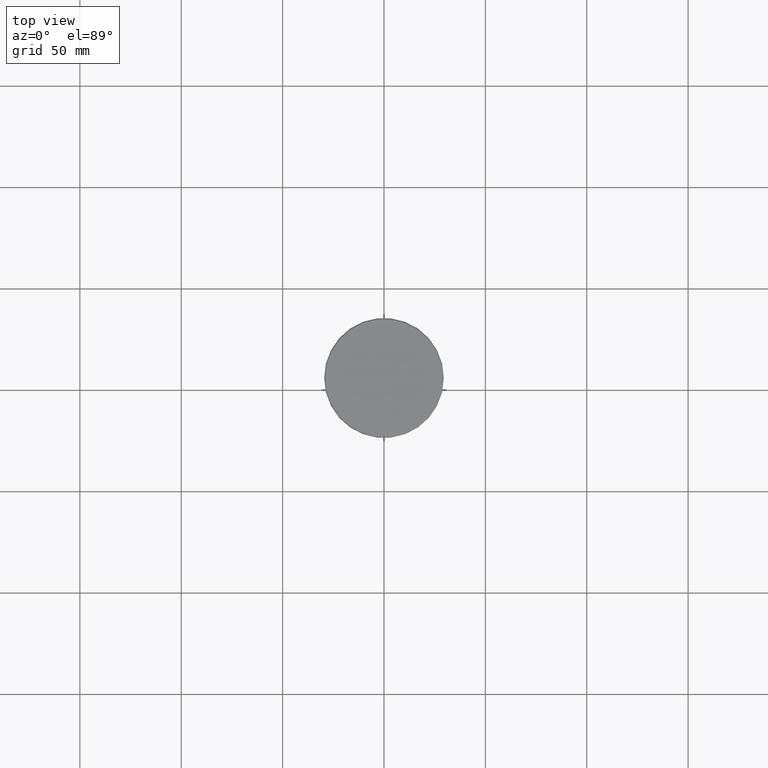
[diagram: clean part render]
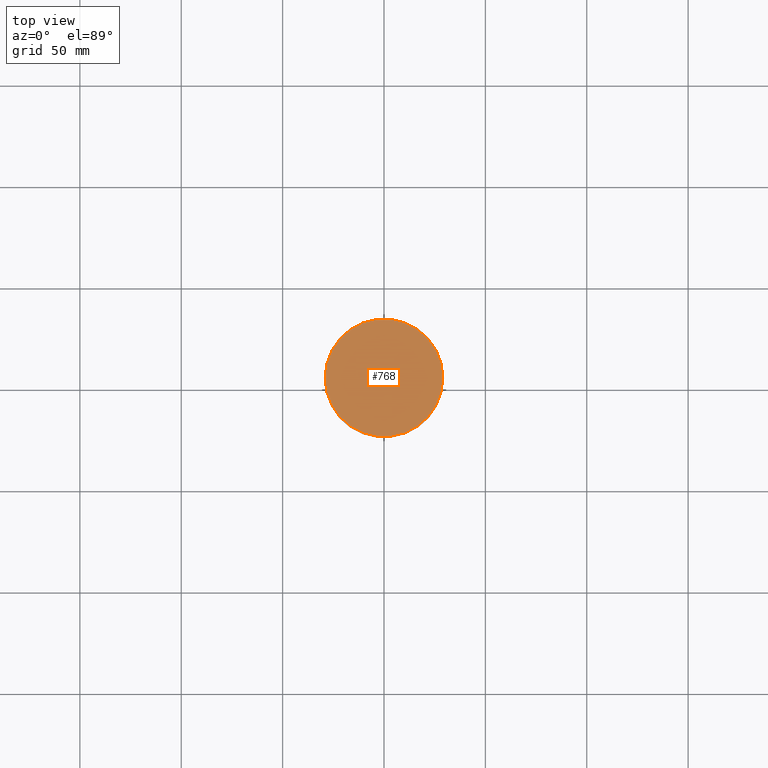
[diagram: same view with one face highlighted and labeled with its STEP entity id]
A machine part, top view. The second image highlights one B-rep face of the part: STEP entity #768.
In plain terms, the highlighted planar face has unit normal (0, -0, 1).
Its self-contained STEP definition (entity closure, byte-faithful):
#31 = FACE_OUTER_BOUND ( 'NONE', #98, .T. ) ;
#41 = DIRECTION ( 'NONE',  ( 0.000000000000000000, -0.000000000000000000, 1.000000000000000000 ) ) ;
#61 = DIRECTION ( 'NONE',  ( 1.000000000000000000, 0.000000000000000000, 0.000000000000000000 ) ) ;
#98 = EDGE_LOOP ( 'NONE', ( #406, #285 ) ) ;
#102 = VERTEX_POINT ( 'NONE', #375 ) ;
#172 = EDGE_CURVE ( 'NONE', #102, #593, #1007, .T. ) ;
#181 = DIRECTION ( 'NONE',  ( 1.000000000000000000, 0.000000000000000000, 0.000000000000000000 ) ) ;
#285 = ORIENTED_EDGE ( 'NONE', *, *, #172, .T. ) ;
#375 = CARTESIAN_POINT ( 'NONE',  ( 28.99999999999997158, 3.582091887506006239E-15, 0.000000000000000000 ) ) ;
#406 = ORIENTED_EDGE ( 'NONE', *, *, #557, .T. ) ;
#478 = CARTESIAN_POINT ( 'NONE',  ( -28.99999999999997158, 0.000000000000000000, 0.000000000000000000 ) ) ;
#557 = EDGE_CURVE ( 'NONE', #593, #102, #725, .T. ) ;
#564 = DIRECTION ( 'NONE',  ( -0.000000000000000000, -0.000000000000000000, 1.000000000000000000 ) ) ;
#582 = CARTESIAN_POINT ( 'NONE',  ( 0.000000000000000000, 0.000000000000000000, 0.000000000000000000 ) ) ;
#593 = VERTEX_POINT ( 'NONE', #478 ) ;
#668 = CARTESIAN_POINT ( 'NONE',  ( 0.000000000000000000, 0.000000000000000000, 0.000000000000000000 ) ) ;
#725 = CIRCLE ( 'NONE', #822, 28.99999999999997158 ) ;
#743 = AXIS2_PLACEMENT_3D ( 'NONE', #668, #564, #1026 ) ;
#768 = ADVANCED_FACE ( 'NONE', ( #31 ), #770, .T. ) ;
#770 = PLANE ( 'NONE',  #1089 ) ;
#822 = AXIS2_PLACEMENT_3D ( 'NONE', #582, #945, #181 ) ;
#862 = CARTESIAN_POINT ( 'NONE',  ( 0.000000000000000000, 0.000000000000000000, 0.000000000000000000 ) ) ;
#945 = DIRECTION ( 'NONE',  ( -0.000000000000000000, -0.000000000000000000, 1.000000000000000000 ) ) ;
#1007 = CIRCLE ( 'NONE', #743, 28.99999999999997158 ) ;
#1026 = DIRECTION ( 'NONE',  ( 1.000000000000000000, 0.000000000000000000, 0.000000000000000000 ) ) ;
#1089 = AXIS2_PLACEMENT_3D ( 'NONE', #862, #41, #61 ) ;